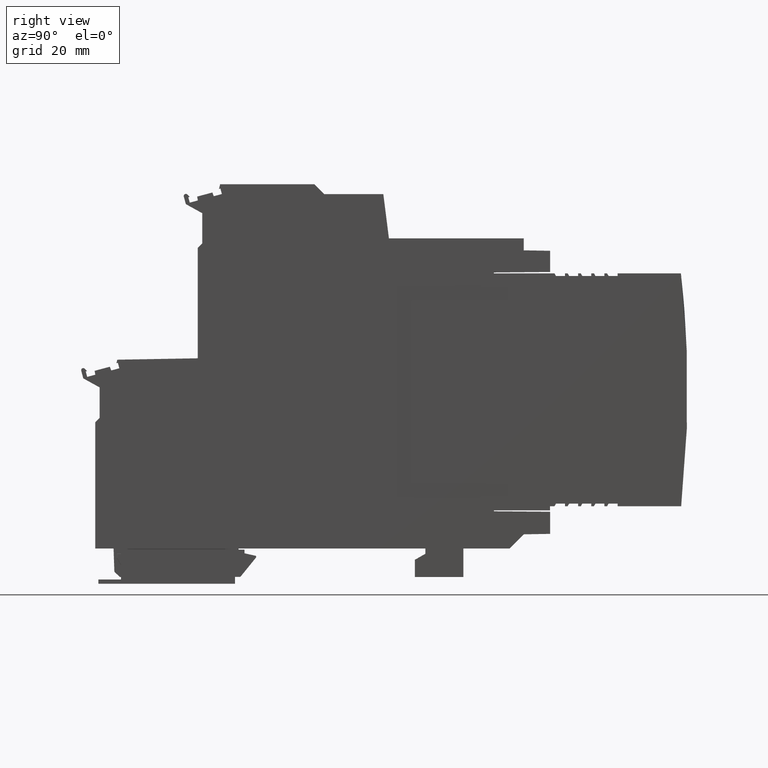
[diagram: clean part render]
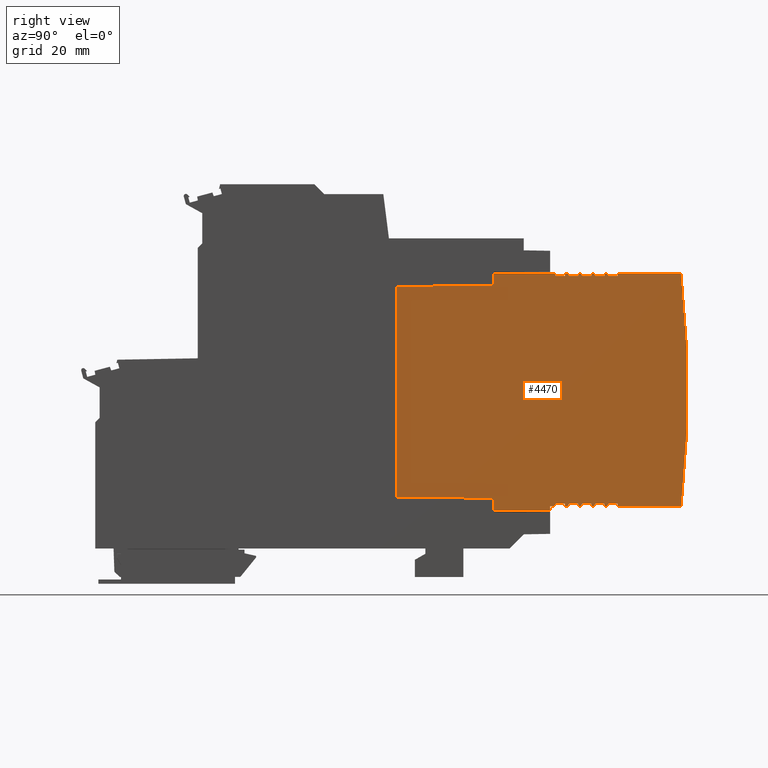
[diagram: same view with one face highlighted and labeled with its STEP entity id]
A machine part, right view. The second image highlights one B-rep face of the part: STEP entity #4470.
In plain terms, the highlighted planar face has unit normal (1, 0, 0).
Its self-contained STEP definition (entity closure, byte-faithful):
#60=CARTESIAN_POINT('',(22.5462375298775,0.,17.5006430606323));
#70=DIRECTION('',(-1.25205768415877E-14,-1.,7.88860905221012E-31));
#80=VECTOR('',#70,1.);
#90=LINE('',#60,#80);
#100=CARTESIAN_POINT('',(22.5462375298785,77.8519329858409,
17.5006430606323));
#110=VERTEX_POINT('',#100);
#120=CARTESIAN_POINT('',(22.5462375298784,67.1645893797424,
17.5006430606323));
#130=VERTEX_POINT('',#120);
#140=EDGE_CURVE('',#110,#130,#90,.T.);
#480=CARTESIAN_POINT('',(18.9212375406146,61.2649893912884,
17.5006430606323));
#490=DIRECTION('',(-6.24500451351651E-17,9.63870624619065E-31,1.));
#500=DIRECTION('',(1.29909147206932E-14,-1.,1.77515383527343E-30));
#510=AXIS2_PLACEMENT_3D('',#480,#490,#500);
#520=PLANE('',#510);
#530=CARTESIAN_POINT('',(0.,67.1645893797436,17.5006430606323));
#540=DIRECTION('',(-1.,-8.0033202287666E-14,-6.24500451351651E-17));
#550=VECTOR('',#540,1.);
#560=LINE('',#530,#550);
#570=CARTESIAN_POINT('',(-20.2221870237595,67.164589379742,
17.5006430606323));
#580=VERTEX_POINT('',#570);
#590=CARTESIAN_POINT('',(-22.5537624701216,67.1645893797418,
17.5006430606323));
#600=VERTEX_POINT('',#590);
#610=EDGE_CURVE('',#580,#600,#560,.T.);
#620=ORIENTED_EDGE('',*,*,#610,.F.);
#630=CARTESIAN_POINT('',(-22.5537624701225,0.,17.5006430606323));
#640=DIRECTION('',(1.25205768415877E-14,1.,-7.88860905221012E-31));
#650=VECTOR('',#640,1.);
#660=LINE('',#630,#650);
#670=CARTESIAN_POINT('',(-22.5537624411119,78.7023318209876,
17.5006430606323));
#680=VERTEX_POINT('',#670);
#690=EDGE_CURVE('',#600,#680,#660,.T.);
#700=ORIENTED_EDGE('',*,*,#690,.F.);
#710=CARTESIAN_POINT('',(-0.153765090452557,91.6351219333717,
17.5006430606323));
#720=DIRECTION('',(-0.866022966077581,-0.500004222208362,
-5.4083173319634E-17));
#730=VECTOR('',#720,1.);
#740=LINE('',#710,#730);
#750=CARTESIAN_POINT('',(-22.053762468885,78.9910101898186,
17.5006430606323));
#760=VERTEX_POINT('',#750);
#770=EDGE_CURVE('',#760,#680,#740,.T.);
#780=ORIENTED_EDGE('',*,*,#770,.T.);
#790=CARTESIAN_POINT('',(-22.0537624688821,-0.0126563877434836,
17.5006430606323));
#800=DIRECTION('',(3.67375126084027E-14,-1.,3.25812994516751E-30));
#810=VECTOR('',#800,1.);
#820=LINE('',#790,#810);
#830=CARTESIAN_POINT('',(-22.053762468885,80.7023329973844,
17.5006430606323));
#840=VERTEX_POINT('',#830);
#850=EDGE_CURVE('',#840,#760,#820,.T.);
#860=ORIENTED_EDGE('',*,*,#850,.T.);
#870=CARTESIAN_POINT('',(-0.153765090452415,80.7023329973848,
17.5006430606323));
#880=DIRECTION('',(1.,1.54212305355997E-14,6.24500451351651E-17));
#890=VECTOR('',#880,1.);
#900=LINE('',#870,#890);
#910=CARTESIAN_POINT('',(-22.5537624726724,80.7023329973844,
17.5006430606323));
#920=VERTEX_POINT('',#910);
#930=EDGE_CURVE('',#920,#840,#900,.T.);
#940=ORIENTED_EDGE('',*,*,#930,.T.);
#950=CARTESIAN_POINT('',(-22.5537619632809,-0.0126563877434901,
17.5006430606323));
#960=DIRECTION('',(6.31098966193458E-9,-1.,3.94122553105999E-25));
#970=VECTOR('',#960,1.);
#980=LINE('',#950,#970);
#990=CARTESIAN_POINT('',(-22.5537624758278,81.2023318009443,
17.5006430606323));
#1000=VERTEX_POINT('',#990);
#1010=EDGE_CURVE('',#1000,#920,#980,.T.);
#1020=ORIENTED_EDGE('',*,*,#1010,.T.);
#1030=CARTESIAN_POINT('',(-0.153765090452589,94.1351219333719,
17.5006430606323));
#1040=DIRECTION('',(-0.866022966077581,-0.500004222208362,
-5.4083173319634E-17));
#1050=VECTOR('',#1040,1.);
#1060=LINE('',#1030,#1050);
#1070=CARTESIAN_POINT('',(-22.0537624688851,81.4910101898188,
17.5006430606323));
#1080=VERTEX_POINT('',#1070);
#1090=EDGE_CURVE('',#1080,#1000,#1060,.T.);
#1100=ORIENTED_EDGE('',*,*,#1090,.T.);
#1110=CARTESIAN_POINT('',(-22.0537624688821,-0.0126563877434836,
17.5006430606323));
#1120=DIRECTION('',(3.67375126084027E-14,-1.,3.25812994516751E-30));
#1130=VECTOR('',#1120,1.);
#1140=LINE('',#1110,#1130);
#1150=CARTESIAN_POINT('',(-22.0537624688851,83.2023329973844,
17.5006430606323));
#1160=VERTEX_POINT('',#1150);
#1170=EDGE_CURVE('',#1160,#1080,#1140,.T.);
#1180=ORIENTED_EDGE('',*,*,#1170,.T.);
#1190=CARTESIAN_POINT('',(-0.153765090452447,83.2023329973847,
17.5006430606323));
#1200=DIRECTION('',(1.,1.54212305355997E-14,6.24500451351651E-17));
#1210=VECTOR('',#1200,1.);
#1220=LINE('',#1190,#1210);
#1230=CARTESIAN_POINT('',(-22.5537624884497,83.2023329973844,
17.5006430606323));
#1240=VERTEX_POINT('',#1230);
#1250=EDGE_CURVE('',#1240,#1160,#1220,.T.);
#1260=ORIENTED_EDGE('',*,*,#1250,.T.);
#1270=CARTESIAN_POINT('',(-22.5537619632808,-0.0126563877434901,
17.5006430606323));
#1280=DIRECTION('',(6.31098966193458E-9,-1.,3.94122553105999E-25));
#1290=VECTOR('',#1280,1.);
#1300=LINE('',#1270,#1290);
#1310=CARTESIAN_POINT('',(-22.5537624916052,83.702331908036,
17.5006430606323));
#1320=VERTEX_POINT('',#1310);
#1330=EDGE_CURVE('',#1320,#1240,#1300,.T.);
#1340=ORIENTED_EDGE('',*,*,#1330,.T.);
#1350=CARTESIAN_POINT('',(-0.153765090452622,96.6351117032406,
17.5006430606323));
#1360=DIRECTION('',(-0.866023139286758,-0.500003922204524,
-5.40831841365549E-17));
#1370=VECTOR('',#1360,1.);
#1380=LINE('',#1350,#1370);
#1390=CARTESIAN_POINT('',(-22.0537624458733,83.9910100883607,
17.5006430606323));
#1400=VERTEX_POINT('',#1390);
#1410=EDGE_CURVE('',#1400,#1320,#1380,.T.);
#1420=ORIENTED_EDGE('',*,*,#1410,.T.);
#1430=CARTESIAN_POINT('',(-22.0537608908162,-0.0126563877434836,
17.5006430606323));
#1440=DIRECTION('',(1.8511777463038E-8,-1.,1.15606230196948E-24));
#1450=VECTOR('',#1440,1.);
#1460=LINE('',#1430,#1450);
#1470=CARTESIAN_POINT('',(-22.053762477553,85.7023329973841,
17.5006430606323));
#1480=VERTEX_POINT('',#1470);
#1490=EDGE_CURVE('',#1480,#1400,#1460,.T.);
#1500=ORIENTED_EDGE('',*,*,#1490,.T.);
#1510=CARTESIAN_POINT('',(-0.15376509045248,85.7023329973849,
17.5006430606323));
#1520=DIRECTION('',(1.,3.67375126084027E-14,6.24500451351651E-17));
#1530=VECTOR('',#1520,1.);
#1540=LINE('',#1510,#1530);
#1550=CARTESIAN_POINT('',(-22.5537624901478,85.7023329973841,
17.5006430606323));
#1560=VERTEX_POINT('',#1550);
#1570=EDGE_CURVE('',#1560,#1480,#1540,.T.);
#1580=ORIENTED_EDGE('',*,*,#1570,.T.);
#1590=CARTESIAN_POINT('',(-22.5537624901447,-0.0126563877434901,
17.5006430606323));
#1600=DIRECTION('',(3.67375126084027E-14,-1.,3.25812994516751E-30));
#1610=VECTOR('',#1600,1.);
#1620=LINE('',#1590,#1610);
#1630=CARTESIAN_POINT('',(-22.5537624901479,86.2023319088775,
17.5006430606323));
#1640=VERTEX_POINT('',#1630);
#1650=EDGE_CURVE('',#1640,#1560,#1620,.T.);
#1660=ORIENTED_EDGE('',*,*,#1650,.T.);
#1670=CARTESIAN_POINT('',(-0.153765090452654,99.1351117032406,
17.5006430606323));
#1680=DIRECTION('',(-0.866023139286758,-0.500003922204524,
-5.40831841365549E-17));
#1690=VECTOR('',#1680,1.);
#1700=LINE('',#1670,#1690);
#1710=CARTESIAN_POINT('',(-22.0537624458734,86.4910100883607,
17.5006430606323));
#1720=VERTEX_POINT('',#1710);
#1730=EDGE_CURVE('',#1720,#1640,#1700,.T.);
#1740=ORIENTED_EDGE('',*,*,#1730,.T.);
#1750=CARTESIAN_POINT('',(-22.0537608445368,-0.0126563877434836,
17.5006430606323));
#1760=DIRECTION('',(1.8511777463038E-8,-1.,1.15606230196948E-24));
#1770=VECTOR('',#1760,1.);
#1780=LINE('',#1750,#1770);
#1790=CARTESIAN_POINT('',(-22.0537624775531,88.2023329973841,
17.5006430606323));
#1800=VERTEX_POINT('',#1790);
#1810=EDGE_CURVE('',#1800,#1720,#1780,.T.);
#1820=ORIENTED_EDGE('',*,*,#1810,.T.);
#1830=CARTESIAN_POINT('',(-0.153765090452512,88.2023329973849,
17.5006430606323));
#1840=DIRECTION('',(1.,3.67375126084027E-14,6.24500451351651E-17));
#1850=VECTOR('',#1840,1.);
#1860=LINE('',#1830,#1850);
#1870=CARTESIAN_POINT('',(-22.5537624701484,88.2023329973841,
17.5006430606323));
#1880=VERTEX_POINT('',#1870);
#1890=EDGE_CURVE('',#1880,#1800,#1860,.T.);
#1900=ORIENTED_EDGE('',*,*,#1890,.T.);
#1910=CARTESIAN_POINT('',(-22.5537559129418,-0.0126563877434901,
17.5006430606323));
#1920=DIRECTION('',(7.43321131959716E-8,-0.999999999999997,
4.64204478795125E-24));
#1930=VECTOR('',#1920,1.);
#1940=LINE('',#1910,#1930);
#1950=CARTESIAN_POINT('',(-22.5537625073143,88.7023318989673,
17.5006430606323));
#1960=VERTEX_POINT('',#1950);
#1970=EDGE_CURVE('',#1960,#1880,#1940,.T.);
#1980=ORIENTED_EDGE('',*,*,#1970,.T.);
#1990=CARTESIAN_POINT('',(-0.153765090452687,101.635111703135,
17.5006430606323));
#2000=DIRECTION('',(-0.866023139288545,-0.500003922201429,
-5.40831841366665E-17));
#2010=VECTOR('',#2000,1.);
#2020=LINE('',#1990,#2010);
#2030=CARTESIAN_POINT('',(-22.0537624458735,88.9910100883592,
17.5006430606323));
#2040=VERTEX_POINT('',#2030);
#2050=EDGE_CURVE('',#2040,#1960,#2020,.T.);
#2060=ORIENTED_EDGE('',*,*,#2050,.T.);
#2070=CARTESIAN_POINT('',(-22.0537607982575,-0.0126563877434836,
17.5006430606323));
#2080=DIRECTION('',(1.8511777463038E-8,-1.,1.15606230196948E-24));
#2090=VECTOR('',#2080,1.);
#2100=LINE('',#2070,#2090);
#2110=CARTESIAN_POINT('',(-22.0537624775532,90.7023329973827,
17.5006430606323));
#2120=VERTEX_POINT('',#2110);
#2130=EDGE_CURVE('',#2120,#2040,#2100,.T.);
#2140=ORIENTED_EDGE('',*,*,#2130,.T.);
#2150=CARTESIAN_POINT('',(-0.153765090452545,90.7023329973026,
17.5006430606323));
#2160=DIRECTION('',(1.,-3.65607213208702E-12,6.24500451351651E-17));
#2170=VECTOR('',#2160,1.);
#2180=LINE('',#2150,#2170);
#2190=CARTESIAN_POINT('',(-22.5537624701207,90.7023329973845,
17.5006430606323));
#2200=VERTEX_POINT('',#2190);
#2210=EDGE_CURVE('',#2200,#2120,#2180,.T.);
#2220=ORIENTED_EDGE('',*,*,#2210,.T.);
#2230=CARTESIAN_POINT('',(-22.5537624701174,-0.0126563877434901,
17.5006430606323));
#2240=DIRECTION('',(3.67375126084027E-14,-1.,3.25812994516751E-30));
#2250=VECTOR('',#2240,1.);
#2260=LINE('',#2230,#2250);
#2270=CARTESIAN_POINT('',(-22.5537624701212,102.74397433105,
17.5006430606323));
#2280=VERTEX_POINT('',#2270);
#2290=EDGE_CURVE('',#2280,#2200,#2260,.T.);
#2300=ORIENTED_EDGE('',*,*,#2290,.T.);
#2310=CARTESIAN_POINT('',(-0.153762470117494,-95.9976670026171,
17.5006430606323));
#2320=DIRECTION('',(5.52308764794106E-16,1.78044571944912E-29,-1.));
#2330=DIRECTION('',(1.29909147206932E-14,-1.,-1.06294611315595E-29));
#2340=AXIS2_PLACEMENT_3D('',#2310,#2320,#2330);
#2350=CIRCLE('',#2340,200.);
#2360=CARTESIAN_POINT('',(21.7462375298771,102.799692134772,
17.5006430606323));
#2370=VERTEX_POINT('',#2360);
#2380=EDGE_CURVE('',#2280,#2370,#2350,.T.);
#2390=ORIENTED_EDGE('',*,*,#2380,.F.);
#2400=CARTESIAN_POINT('',(21.7462375298901,-0.0126563877429146,
17.5006430606323));
#2410=DIRECTION('',(-1.24299474238037E-13,1.,-8.72637840106173E-30));
#2420=VECTOR('',#2410,1.);
#2430=LINE('',#2400,#2420);
#2440=CARTESIAN_POINT('',(21.7462375298788,90.7023329973881,
17.5006430606323));
#2450=VERTEX_POINT('',#2440);
#2460=EDGE_CURVE('',#2450,#2370,#2430,.T.);
#2470=ORIENTED_EDGE('',*,*,#2460,.T.);
#2480=CARTESIAN_POINT('',(-0.153765090452545,90.7023329973045,
17.5006430606323));
#2490=DIRECTION('',(1.,3.81710911893345E-12,6.24500451351651E-17));
#2500=VECTOR('',#2490,1.);
#2510=LINE('',#2480,#2500);
#2520=CARTESIAN_POINT('',(21.2462375373112,90.7023329973862,
17.5006430606323));
#2530=VERTEX_POINT('',#2520);
#2540=EDGE_CURVE('',#2530,#2450,#2510,.T.);
#2550=ORIENTED_EDGE('',*,*,#2540,.T.);
#2560=CARTESIAN_POINT('',(21.2462358580301,-0.0126563877429211,
17.5006430606323));
#2570=DIRECTION('',(1.85116164260511E-8,1.,1.15605031746113E-24));
#2580=VECTOR('',#2570,1.);
#2590=LINE('',#2560,#2580);
#2600=CARTESIAN_POINT('',(21.2462375056319,88.9910100883627,
17.5006430606323));
#2610=VERTEX_POINT('',#2600);
#2620=EDGE_CURVE('',#2610,#2530,#2590,.T.);
#2630=ORIENTED_EDGE('',*,*,#2620,.T.);
#2640=CARTESIAN_POINT('',(-0.153765090452683,101.346436574945,
17.5006430606323));
#2650=DIRECTION('',(-0.866023139288626,0.50000392220129,
-5.40831841366725E-17));
#2660=VECTOR('',#2650,1.);
#2670=LINE('',#2640,#2660);
#2680=CARTESIAN_POINT('',(21.7462375670727,88.7023318989709,
17.5006430606323));
#2690=VERTEX_POINT('',#2680);
#2700=EDGE_CURVE('',#2690,#2610,#2670,.T.);
#2710=ORIENTED_EDGE('',*,*,#2700,.T.);
#2720=CARTESIAN_POINT('',(21.7462309727145,-0.0126563877429146,
17.5006430606323));
#2730=DIRECTION('',(7.43319521589848E-8,0.999999999999997,
4.6420328034429E-24));
#2740=VECTOR('',#2730,1.);
#2750=LINE('',#2720,#2740);
#2760=CARTESIAN_POINT('',(21.7462375299068,88.2023329973876,
17.5006430606323));
#2770=VERTEX_POINT('',#2760);
#2780=EDGE_CURVE('',#2770,#2690,#2750,.T.);
#2790=ORIENTED_EDGE('',*,*,#2780,.T.);
#2800=CARTESIAN_POINT('',(-0.153765090452512,88.2023329973849,
17.5006430606323));
#2810=DIRECTION('',(1.,1.24299474238037E-13,6.24500451351651E-17));
#2820=VECTOR('',#2810,1.);
#2830=LINE('',#2800,#2820);
#2840=CARTESIAN_POINT('',(21.2462375373115,88.2023329973876,
17.5006430606323));
#2850=VERTEX_POINT('',#2840);
#2860=EDGE_CURVE('',#2850,#2770,#2830,.T.);
#2870=ORIENTED_EDGE('',*,*,#2860,.T.);
#2880=CARTESIAN_POINT('',(21.2462359043095,-0.0126563877429211,
17.5006430606323));
#2890=DIRECTION('',(1.85116164260511E-8,1.,1.15605031746113E-24));
#2900=VECTOR('',#2890,1.);
#2910=LINE('',#2880,#2900);
#2920=CARTESIAN_POINT('',(21.2462375056322,86.4910100883642,
17.5006430606323));
#2930=VERTEX_POINT('',#2920);
#2940=EDGE_CURVE('',#2930,#2850,#2910,.T.);
#2950=ORIENTED_EDGE('',*,*,#2940,.T.);
#2960=CARTESIAN_POINT('',(-0.153765090452651,98.8464365750489,
17.5006430606323));
#2970=DIRECTION('',(-0.866023139286839,0.500003922204385,
-5.40831841365609E-17));
#2980=VECTOR('',#2970,1.);
#2990=LINE('',#2960,#2980);
#3000=CARTESIAN_POINT('',(21.7462375499067,86.202331908881,
17.5006430606323));
#3010=VERTEX_POINT('',#3000);
#3020=EDGE_CURVE('',#3010,#2930,#2990,.T.);
#3030=ORIENTED_EDGE('',*,*,#3020,.T.);
#3040=CARTESIAN_POINT('',(21.7462375499174,-0.0126563877429146,
17.5006430606323));
#3050=DIRECTION('',(-1.24299474238037E-13,1.,-8.72637840106173E-30));
#3060=VECTOR('',#3050,1.);
#3070=LINE('',#3040,#3060);
#3080=CARTESIAN_POINT('',(21.7462375499067,85.7023329973877,
17.5006430606323));
#3090=VERTEX_POINT('',#3080);
#3100=EDGE_CURVE('',#3090,#3010,#3070,.T.);
#3110=ORIENTED_EDGE('',*,*,#3100,.T.);
#3120=CARTESIAN_POINT('',(-0.15376509045248,85.7023329973849,
17.5006430606323));
#3130=DIRECTION('',(1.,1.24299474238037E-13,6.24500451351651E-17));
#3140=VECTOR('',#3130,1.);
#3150=LINE('',#3120,#3140);
#3160=CARTESIAN_POINT('',(21.2462375373118,85.7023329973876,
17.5006430606323));
#3170=VERTEX_POINT('',#3160);
#3180=EDGE_CURVE('',#3170,#3090,#3150,.T.);
#3190=ORIENTED_EDGE('',*,*,#3180,.T.);
#3200=CARTESIAN_POINT('',(21.2462359505888,-0.0126563877429211,
17.5006430606323));
#3210=DIRECTION('',(1.85116164260511E-8,1.,1.15605031746113E-24));
#3220=VECTOR('',#3210,1.);
#3230=LINE('',#3200,#3220);
#3240=CARTESIAN_POINT('',(21.2462375056325,83.9910100883642,
17.5006430606323));
#3250=VERTEX_POINT('',#3240);
#3260=EDGE_CURVE('',#3250,#3170,#3230,.T.);
#3270=ORIENTED_EDGE('',*,*,#3260,.T.);
#3280=CARTESIAN_POINT('',(-0.153765090452618,96.3464365750491,
17.5006430606323));
#3290=DIRECTION('',(-0.866023139286839,0.500003922204385,
-5.40831841365609E-17));
#3300=VECTOR('',#3290,1.);
#3310=LINE('',#3280,#3300);
#3320=CARTESIAN_POINT('',(21.7462375513644,83.7023319080396,
17.5006430606323));
#3330=VERTEX_POINT('',#3320);
#3340=EDGE_CURVE('',#3330,#3250,#3310,.T.);
#3350=ORIENTED_EDGE('',*,*,#3340,.T.);
#3360=CARTESIAN_POINT('',(21.7462370230535,-0.0126563877429146,
17.5006430606323));
#3370=DIRECTION('',(6.31082862494773E-9,1.,3.94110568597653E-25));
#3380=VECTOR('',#3370,1.);
#3390=LINE('',#3360,#3380);
#3400=CARTESIAN_POINT('',(21.746237548209,83.202332997388,
17.5006430606323));
#3410=VERTEX_POINT('',#3400);
#3420=EDGE_CURVE('',#3410,#3330,#3390,.T.);
#3430=ORIENTED_EDGE('',*,*,#3420,.T.);
#3440=CARTESIAN_POINT('',(-0.153765090452447,83.2023329973848,
17.5006430606323));
#3450=DIRECTION('',(1.,1.4561575631084E-13,6.24500451351651E-17));
#3460=VECTOR('',#3450,1.);
#3470=LINE('',#3440,#3460);
#3480=CARTESIAN_POINT('',(21.2462375286444,83.2023329973879,
17.5006430606323));
#3490=VERTEX_POINT('',#3480);
#3500=EDGE_CURVE('',#3490,#3410,#3470,.T.);
#3510=ORIENTED_EDGE('',*,*,#3500,.T.);
#3520=CARTESIAN_POINT('',(21.2462375286547,-0.0126563877429211,
17.5006430606323));
#3530=DIRECTION('',(-1.24299474238037E-13,1.,-8.72637840106173E-30));
#3540=VECTOR('',#3530,1.);
#3550=LINE('',#3520,#3540);
#3560=CARTESIAN_POINT('',(21.2462375286446,81.4910101898222,
17.5006430606323));
#3570=VERTEX_POINT('',#3560);
#3580=EDGE_CURVE('',#3570,#3490,#3550,.T.);
#3590=ORIENTED_EDGE('',*,*,#3580,.T.);
#3600=CARTESIAN_POINT('',(-0.153765090452586,93.846446574238,
17.5006430606323));
#3610=DIRECTION('',(-0.866022966077662,0.500004222208222,
-5.408317331964E-17));
#3620=VECTOR('',#3610,1.);
#3630=LINE('',#3600,#3620);
#3640=CARTESIAN_POINT('',(21.7462375355875,81.2023318009478,
17.5006430606323));
#3650=VERTEX_POINT('',#3640);
#3660=EDGE_CURVE('',#3650,#3570,#3630,.T.);
#3670=ORIENTED_EDGE('',*,*,#3660,.T.);
#3680=CARTESIAN_POINT('',(21.7462370230536,-0.0126563877429146,
17.5006430606323));
#3690=DIRECTION('',(6.31082862494773E-9,1.,3.94110568597653E-25));
#3700=VECTOR('',#3690,1.);
#3710=LINE('',#3680,#3700);
#3720=CARTESIAN_POINT('',(21.746237532432,80.702332997388,
17.5006430606323));
#3730=VERTEX_POINT('',#3720);
#3740=EDGE_CURVE('',#3730,#3650,#3710,.T.);
#3750=ORIENTED_EDGE('',*,*,#3740,.T.);
#3760=CARTESIAN_POINT('',(-0.153765090452415,80.7023329973848,
17.5006430606323));
#3770=DIRECTION('',(1.,1.4561575631084E-13,6.24500451351651E-17));
#3780=VECTOR('',#3770,1.);
#3790=LINE('',#3760,#3780);
#3800=CARTESIAN_POINT('',(21.2462375286447,80.7023329973879,
17.5006430606323));
#3810=VERTEX_POINT('',#3800);
#3820=EDGE_CURVE('',#3810,#3730,#3790,.T.);
#3830=ORIENTED_EDGE('',*,*,#3820,.T.);
#3840=CARTESIAN_POINT('',(21.2462375286547,-0.0126563877429211,
17.5006430606323));
#3850=DIRECTION('',(-1.24299474238037E-13,1.,-8.72637840106173E-30));
#3860=VECTOR('',#3850,1.);
#3870=LINE('',#3840,#3860);
#3880=CARTESIAN_POINT('',(21.2462375286449,78.9910101898221,
17.5006430606323));
#3890=VERTEX_POINT('',#3880);
#3900=EDGE_CURVE('',#3890,#3810,#3870,.T.);
#3910=ORIENTED_EDGE('',*,*,#3900,.T.);
#3920=CARTESIAN_POINT('',(-0.153765090452553,91.3464465742381,
17.5006430606323));
#3930=DIRECTION('',(-0.866022966077662,0.500004222208222,
-5.408317331964E-17));
#3940=VECTOR('',#3930,1.);
#3950=LINE('',#3920,#3940);
#3960=CARTESIAN_POINT('',(21.7462375008719,78.7023318209911,
17.5006430606323));
#3970=VERTEX_POINT('',#3960);
#3980=EDGE_CURVE('',#3970,#3890,#3950,.T.);
#3990=ORIENTED_EDGE('',*,*,#3980,.T.);
#4000=CARTESIAN_POINT('',(21.7462375008815,-0.0126563877429146,
17.5006430606323));
#4010=DIRECTION('',(-1.21833020353416E-13,1.,-8.57234824464337E-30));
#4020=VECTOR('',#4010,1.);
#4030=LINE('',#4000,#4020);
#4040=CARTESIAN_POINT('',(21.746237500872,77.8519329858408,
17.5006430606323));
#4050=VERTEX_POINT('',#4040);
#4060=EDGE_CURVE('',#4050,#3970,#4030,.T.);
#4070=ORIENTED_EDGE('',*,*,#4060,.T.);
#4080=CARTESIAN_POINT('',(-0.153765090452378,77.8519329858391,
17.5006430606323));
#4090=DIRECTION('',(-1.,-8.05184934232196E-14,-6.24500451351651E-17));
#4100=VECTOR('',#4090,1.);
#4110=LINE('',#4080,#4100);
#4120=EDGE_CURVE('',#110,#4050,#4110,.T.);
#4130=ORIENTED_EDGE('',*,*,#4120,.T.);
#4140=ORIENTED_EDGE('',*,*,#140,.F.);
#4150=CARTESIAN_POINT('',(0.,67.1645893797422,17.5006430606323));
#4160=DIRECTION('',(-1.,-1.25004173678889E-14,-6.24500451351651E-17));
#4170=VECTOR('',#4160,1.);
#4180=LINE('',#4150,#4170);
#4190=CARTESIAN_POINT('',(20.2072482415016,67.1645893797424,
17.5006430606323));
#4200=VERTEX_POINT('',#4190);
#4210=EDGE_CURVE('',#130,#4200,#4180,.T.);
#4220=ORIENTED_EDGE('',*,*,#4210,.F.);
#4230=CARTESIAN_POINT('',(19.6211117497649,0.,17.5006430606323));
#4240=DIRECTION('',(0.00872653549836144,0.999961923064171,
8.67361737988404E-19));
#4250=VECTOR('',#4240,1.);
#4260=LINE('',#4230,#4250);
#4270=CARTESIAN_POINT('',(20.0462375308631,48.7145893912866,
17.5006430606323));
#4280=VERTEX_POINT('',#4270);
#4290=EDGE_CURVE('',#4280,#4200,#4260,.T.);
#4300=ORIENTED_EDGE('',*,*,#4290,.T.);
#4310=CARTESIAN_POINT('',(0.,48.7145893912863,17.5006430606323));
#4320=DIRECTION('',(-1.,-1.27849120179491E-14,-6.24500451351651E-17));
#4330=VECTOR('',#4320,1.);
#4340=LINE('',#4310,#4330);
#4350=CARTESIAN_POINT('',(-20.0611763131205,48.7145893912861,
17.5006430606323));
#4360=VERTEX_POINT('',#4350);
#4370=EDGE_CURVE('',#4280,#4360,#4340,.T.);
#4380=ORIENTED_EDGE('',*,*,#4370,.F.);
#4390=CARTESIAN_POINT('',(-19.636050532021,0.,17.5006430606323));
#4400=DIRECTION('',(0.00872653549838643,-0.999961923064171,
8.67361737988404E-19));
#4410=VECTOR('',#4400,1.);
#4420=LINE('',#4390,#4410);
#4430=EDGE_CURVE('',#580,#4360,#4420,.T.);
#4440=ORIENTED_EDGE('',*,*,#4430,.T.);
#4450=EDGE_LOOP('',(#4440,#4380,#4300,#4220,#4140,#4130,#4070,#3990,
#3910,#3830,#3750,#3670,#3590,#3510,#3430,#3350,#3270,#3190,#3110,#3030,
#2950,#2870,#2790,#2710,#2630,#2550,#2470,#2390,#2300,#2220,#2140,#2060,
#1980,#1900,#1820,#1740,#1660,#1580,#1500,#1420,#1340,#1260,#1180,#1100,
#1020,#940,#860,#780,#700,#620));
#4460=FACE_OUTER_BOUND('',#4450,.T.);
#4470=ADVANCED_FACE('',(#4460),#520,.T.);